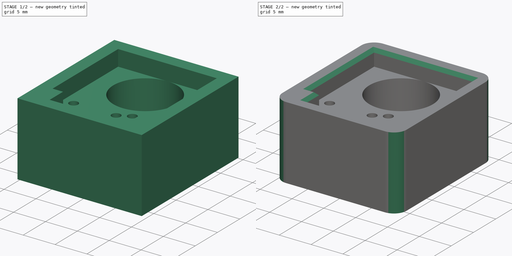
[diagram: build sequence overview — one tinted view per stage of 2, left to right]
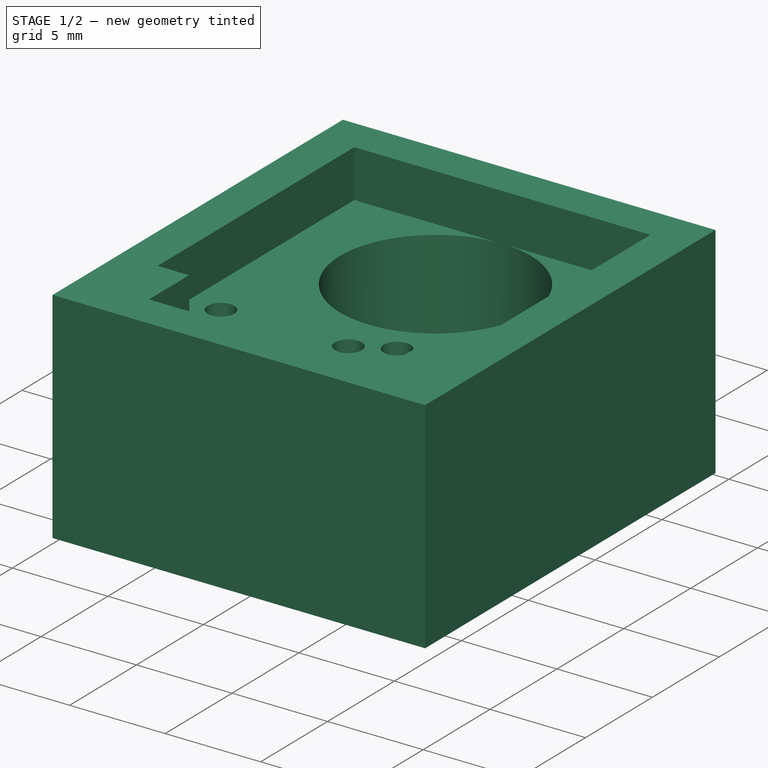
[diagram: stage 1 of 2 — iso view after this stage's code; geometry added in this stage tinted green]
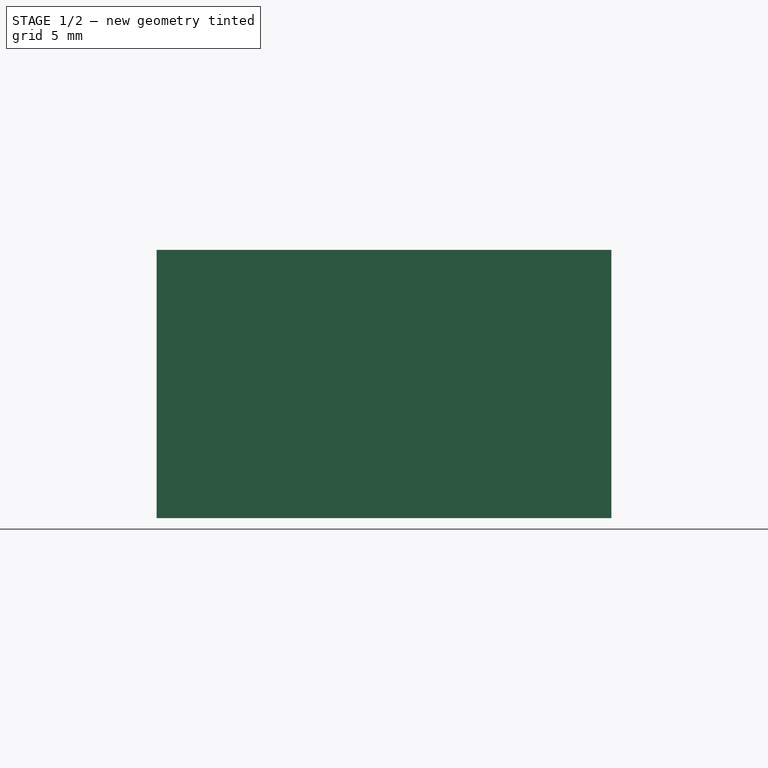
[diagram: stage 1 of 2 — front view after this stage's code; geometry added in this stage tinted green]
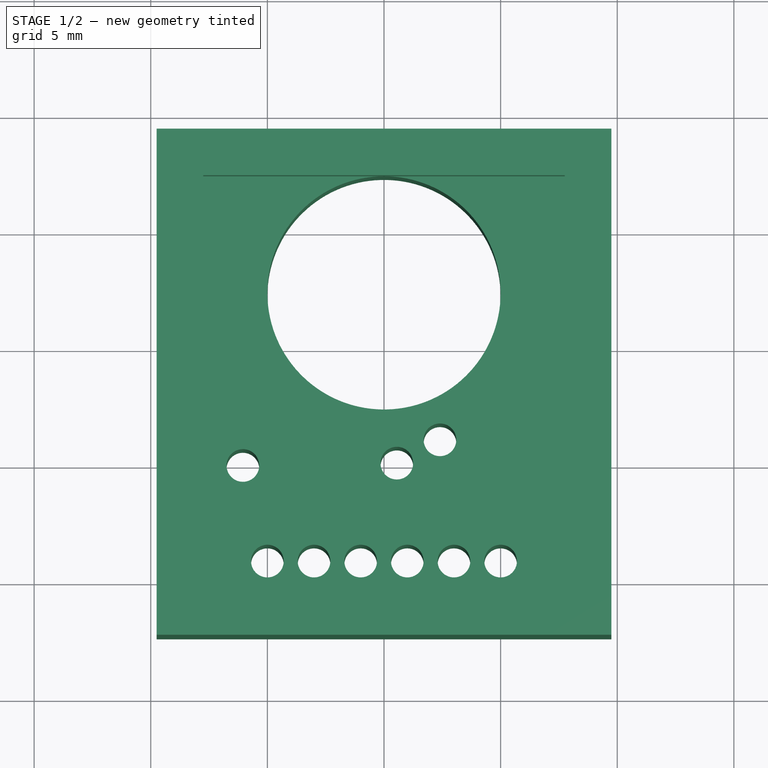
[diagram: stage 1 of 2 — top view after this stage's code; geometry added in this stage tinted green]
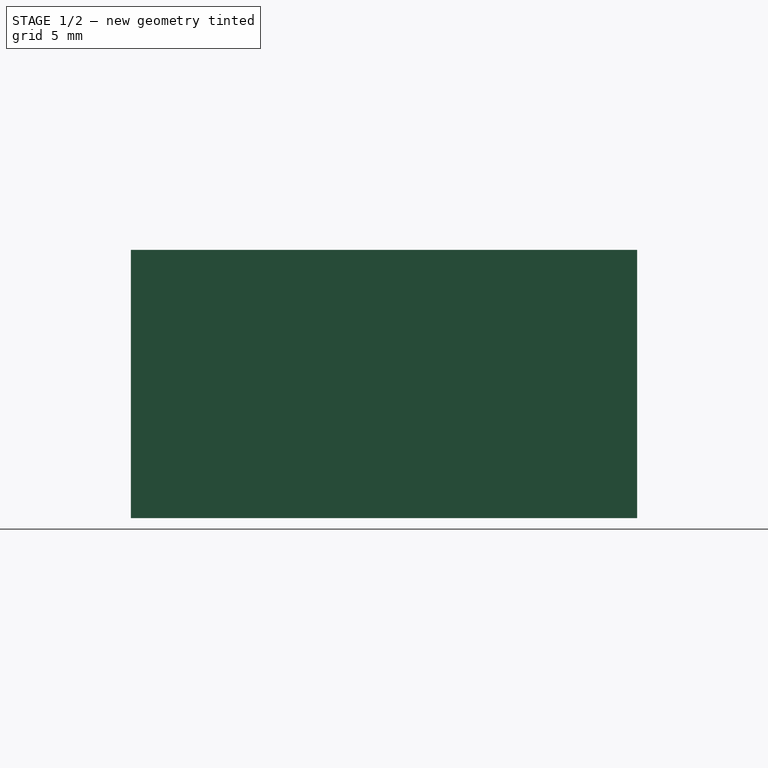
[diagram: stage 1 of 2 — right view after this stage's code; geometry added in this stage tinted green]
FCSTD DOCUMENT  (FreeCAD 0.20R24467 (Git))
Label: TYWE2S_rig
License: All rights reserved
LicenseURL: http://en.wikipedia.org/wiki/All_rights_reserved
objects: Sketcher::SketchObject×3, PartDesign::Pad×2, PartDesign::Fillet×1, PartDesign::Chamfer×1, PartDesign::Body×1
note: 12 computed .brp shape members not serialized (recipe doc carries the construction recipe); baked Part::Feature solids carry a one-line shape summary decoded from their .brp

FEATURE [Sketcher::SketchObject] Sketch  label="Template"
  FullyConstrained = true
  MapMode = 5
  Support = -> [XY_Plane]
  sketch-geometry (32):
    g0: LineSegment StartX=-7.75 StartY=7.35 StartZ=0 EndX=7.75 EndY=7.35 EndZ=0
    g1: LineSegment StartX=7.75 StartY=7.35 StartZ=0 EndX=7.75 EndY=-7.35 EndZ=0
    g2: LineSegment StartX=7.75 StartY=-7.35 StartZ=0 EndX=6.1 EndY=-7.35 EndZ=0
    g3: LineSegment StartX=-7.75 StartY=-7.35 StartZ=0 EndX=-7.75 EndY=7.35 EndZ=0
    g4: LineSegment StartX=-6.1 StartY=-7.35 StartZ=0 EndX=-6.1 EndY=-10.35 EndZ=0
    g5: LineSegment StartX=-6.1 StartY=-10.35 StartZ=0 EndX=6.1 EndY=-10.35 EndZ=0
    g6: LineSegment StartX=6.1 StartY=-10.35 StartZ=0 EndX=6.1 EndY=-7.35 EndZ=0
    g7: LineSegment StartX=-6.1 StartY=-7.35 StartZ=0 EndX=-7.75 EndY=-7.35 EndZ=0
    g8: GeomPoint X=0 Y=0 Z=0
    g9: LineSegment StartX=-9.75 StartY=9.35 StartZ=0 EndX=9.75 EndY=9.35 EndZ=0
    g10: LineSegment StartX=9.75 StartY=9.35 StartZ=0 EndX=9.75 EndY=-12.35 EndZ=0
    g11: LineSegment StartX=9.75 StartY=-12.35 StartZ=0 EndX=-9.75 EndY=-12.35 EndZ=0
    g12: LineSegment StartX=-9.75 StartY=-12.35 StartZ=0 EndX=-9.75 EndY=9.35 EndZ=0
    g13: LineSegment StartX=7.75 StartY=7.35 StartZ=0 EndX=9.75 EndY=7.35 EndZ=0
    g14: LineSegment StartX=-7.75 StartY=7.35 StartZ=0 EndX=-7.75 EndY=9.35 EndZ=0
    g15: LineSegment StartX=-7.75 StartY=-7.35 StartZ=0 EndX=-9.75 EndY=-7.35 EndZ=0
    g16: LineSegment StartX=6.1 StartY=-10.35 StartZ=0 EndX=6.1 EndY=-12.35 EndZ=0
    g17: LineSegment StartX=7e-16 StartY=7.35 StartZ=0 EndX=7e-16 EndY=-10.35 EndZ=0
    g18: Circle CenterX=-5 CenterY=-9.15 CenterZ=0 NormalX=0 NormalY=0 NormalZ=1 AngleXU=0 Radius=0.7
    g19: Circle CenterX=-3 CenterY=-9.15 CenterZ=0 NormalX=0 NormalY=0 NormalZ=1 AngleXU=0 Radius=0.7
    g20: Circle CenterX=-1 CenterY=-9.15 CenterZ=0 NormalX=0 NormalY=0 NormalZ=1 AngleXU=0 Radius=0.7
    g21: Circle CenterX=1 CenterY=-9.15 CenterZ=0 NormalX=0 NormalY=0 NormalZ=1 AngleXU=0 Radius=0.7
    g22: Circle CenterX=3 CenterY=-9.15 CenterZ=0 NormalX=0 NormalY=0 NormalZ=1 AngleXU=0 Radius=0.7
    g23: Circle CenterX=5 CenterY=-9.15 CenterZ=0 NormalX=0 NormalY=0 NormalZ=1 AngleXU=0 Radius=0.7
    g24: LineSegment StartX=-5 StartY=-9.15 StartZ=0 EndX=-3 EndY=-9.15 EndZ=0
    g25: LineSegment StartX=-3 StartY=-9.15 StartZ=0 EndX=-1 EndY=-9.15 EndZ=0
    g26: LineSegment StartX=-1 StartY=-9.15 StartZ=0 EndX=1 EndY=-9.15 EndZ=0
    g27: LineSegment StartX=1 StartY=-9.15 StartZ=0 EndX=3 EndY=-9.15 EndZ=0
    g28: LineSegment StartX=3 StartY=-9.15 StartZ=0 EndX=5 EndY=-9.15 EndZ=0
    g29: Circle CenterX=2.4 CenterY=-3.95 CenterZ=0 NormalX=0 NormalY=0 NormalZ=1 AngleXU=0 Radius=0.7
    g30: Circle CenterX=0.55 CenterY=-4.95 CenterZ=0 NormalX=0 NormalY=0 NormalZ=1 AngleXU=0 Radius=0.7
    g31: Circle CenterX=-6.05 CenterY=-5.05 CenterZ=0 NormalX=0 NormalY=0 NormalZ=1 AngleXU=0 Radius=0.7
  constraints (87):
    c: Coincident(g0,g1)
    c: Coincident(g1,g2)
    c: Coincident(g7,g3)
    c: Coincident(g3,g0)
    c: Horizontal(g0)
    c: Horizontal(g2)
    c: Vertical(g1)
    c: Vertical(g3)
    c: Vertical(g4)
    c: Coincident(g4,g5)
    c: Horizontal(g5)
    c: Coincident(g5,g6)
    c: Vertical(g6)
    c: Coincident(g2,g6)
    c: Coincident(g7,g4)
    c: DistanceX(g5,g5) = 12.2
    c: Equal(g7,g2)
    c: DistanceX(g0,g0) = 15.5
    c: DistanceY(g3,g3) = 14.7
    c: Horizontal(g7)
    c: PointOnObject(g4,g2)
    c: Coincident(g9,g10)
    c: Coincident(g10,g11)
    c: Coincident(g11,g12)
    c: Coincident(g12,g9)
    c: Horizontal(g9)
    c: Horizontal(g11)
    c: Vertical(g10)
    c: Vertical(g12)
    c: Symmetric(g3,g0,g8)
    c: Coincident(g13,g0)
    c: PointOnObject(g13,g10)
    c: Horizontal(g13)
    c: Coincident(g14,g0)
    c: PointOnObject(g14,g9)
    c: Vertical(g14)
    c: Coincident(g15,g3)
    c: PointOnObject(g15,g12)
    c: Horizontal(g15)
    c: Coincident(g16,g5)
    c: PointOnObject(g16,g11)
    c: Vertical(g16)
    c: Equal(g16,g15)
    c: Equal(g15,g14)
    c: Equal(g14,g13)
    c: DistanceX(g0,g9) = 2
    c: Coincident(g-1,g8)  '__ANCHOR__'
    c: DistanceY(g4,g3) = 3
    c: PointOnObject(g17,g0)
    c: PointOnObject(g17,g5)
    c: Symmetric(g4,g5,g17)
    c: Coincident(g24,g18)
    c: Coincident(g24,g19)
    c: Horizontal(g24)
    c: Coincident(g25,g19)
    c: Coincident(g25,g20)
    c: Horizontal(g25)
    c: Coincident(g26,g20)
    c: Coincident(g26,g21)
    c: Coincident(g27,g21)
    c: Coincident(g27,g22)
    c: Horizontal(g27)
    c: Coincident(g28,g22)
    c: Coincident(g28,g23)
    c: Horizontal(g28)
    c: Equal(g18,g19)
    c: Equal(g19,g20)
    c: Equal(g20,g21)
    c: Equal(g21,g22)
    c: Equal(g22,g23)
    c: Equal(g24,g25)
    c: Equal(g25,g26)
    c: Equal(g26,g27)
    c: Equal(g27,g28)
    c: DistanceX(g26,g26) = 2
    c: Symmetric(g20,g21,g17)
    c: Radius(g18) = 0.7
    c: DistanceY(g18,g4) = 1.8
    c: Equal(g23,g29)
    c: Equal(g29,g30)
    c: DistanceY(g2,g29) = 3.4
    c: DistanceY(g2,g30) = 2.4
    c: DistanceX(g29,g22) = 0.6
    c: DistanceX(g30,g21) = 0.45
    c: Equal(g31,g30)
    c: DistanceX(g31,g30) = 6.6
    c: DistanceY(g4,g31) = 2.3
FEATURE [Sketcher::SketchObject] Sketch001
  ExternalGeometry = -> [Sketch]
  FullyConstrained = true
  MapMode = 5
  Support = -> [XY_Plane]
  sketch-geometry (14):
    g0: LineSegment StartX=-9.75 StartY=9.35 StartZ=0 EndX=9.75 EndY=9.35 EndZ=0
    g1: LineSegment StartX=9.75 StartY=9.35 StartZ=0 EndX=9.75 EndY=-12.35 EndZ=0
    g2: LineSegment StartX=9.75 StartY=-12.35 StartZ=0 EndX=-9.75 EndY=-12.35 EndZ=0
    g3: LineSegment StartX=-9.75 StartY=-12.35 StartZ=0 EndX=-9.75 EndY=9.35 EndZ=0
    g4: Circle CenterX=0 CenterY=2.35 CenterZ=0 NormalX=0 NormalY=0 NormalZ=1 AngleXU=0 Radius=5
    g5: Circle CenterX=-5 CenterY=-9.15 CenterZ=0 NormalX=0 NormalY=0 NormalZ=1 AngleXU=0 Radius=0.7
    g6: Circle CenterX=-3 CenterY=-9.15 CenterZ=0 NormalX=0 NormalY=0 NormalZ=1 AngleXU=0 Radius=0.7
    g7: Circle CenterX=-1 CenterY=-9.15 CenterZ=0 NormalX=0 NormalY=0 NormalZ=1 AngleXU=0 Radius=0.7
    g8: Circle CenterX=1 CenterY=-9.15 CenterZ=0 NormalX=0 NormalY=0 NormalZ=1 AngleXU=0 Radius=0.7
    g9: Circle CenterX=3 CenterY=-9.15 CenterZ=0 NormalX=0 NormalY=0 NormalZ=1 AngleXU=0 Radius=0.7
    g10: Circle CenterX=5 CenterY=-9.15 CenterZ=0 NormalX=0 NormalY=0 NormalZ=1 AngleXU=0 Radius=0.7
    g11: Circle CenterX=2.4 CenterY=-3.95 CenterZ=0 NormalX=0 NormalY=0 NormalZ=1 AngleXU=0 Radius=0.7
    g12: Circle CenterX=0.55 CenterY=-4.95 CenterZ=0 NormalX=0 NormalY=0 NormalZ=1 AngleXU=0 Radius=0.7
    g13: Circle CenterX=-6.05 CenterY=-5.05 CenterZ=0 NormalX=0 NormalY=0 NormalZ=1 AngleXU=0 Radius=0.7
  constraints (31):
    c: Coincident(g0,g1)
    c: Coincident(g1,g2)
    c: Coincident(g2,g3)
    c: Coincident(g3,g0)
    c: Horizontal(g0)
    c: Horizontal(g2)
    c: Vertical(g1)
    c: Vertical(g3)
    c: Coincident(g0,g-3)
    c: Coincident(g1,g-4)
    c: PointOnObject(g4,g-2)
    c: Tangent(g4,g-5)
    c: Radius(g4) = 5
    c: Coincident(g5,g-8)
    c: Coincident(g6,g-9)
    c: Coincident(g7,g-10)
    c: Coincident(g8,g-11)
    c: Coincident(g9,g-12)
    c: Coincident(g10,g-13)
    c: Coincident(g11,g-6)
    c: Coincident(g12,g-7)
    c: Equal(g-7,g12)
    c: Equal(g11,g-6)
    c: Equal(g10,g-13)
    c: Equal(g9,g-12)
    c: Equal(g8,g-11)
    c: Equal(g7,g-10)
    c: Equal(g6,g-9)
    c: Equal(g5,g-8)
    c: Coincident(g13,g-14)
    c: Equal(g13,g-14)
FEATURE [PartDesign::Pad] Pad
  Direction = (1,1,1)
  Length = 9
  Length2 = 100
  Profile = -> Sketch001
  Type = 0
FEATURE [Sketcher::SketchObject] Sketch002
  AttachmentOffset = pos=(0,0,9) rot=(0,0,1;0rad)
  ExternalGeometry = -> [Sketch]
  FullyConstrained = true
  MapMode = 5
  Placement = pos=(0,0,9) rot=(0,0,1;0rad)
  Support = -> [XY_Plane]
  expr: .AttachmentOffset.Base.z = Pad.Length
  sketch-geometry (12):
    g0: LineSegment StartX=-9.75 StartY=9.35 StartZ=0 EndX=9.75 EndY=9.35 EndZ=0
    g1: LineSegment StartX=9.75 StartY=9.35 StartZ=0 EndX=9.75 EndY=-12.35 EndZ=0
    g2: LineSegment StartX=9.75 StartY=-12.35 StartZ=0 EndX=-9.75 EndY=-12.35 EndZ=0
    g3: LineSegment StartX=-9.75 StartY=-12.35 StartZ=0 EndX=-9.75 EndY=9.35 EndZ=0
    g4: LineSegment StartX=7.75 StartY=7.35 StartZ=0 EndX=-7.75 EndY=7.35 EndZ=0
    g5: LineSegment StartX=-7.75 StartY=7.35 StartZ=0 EndX=-7.75 EndY=-7.35 EndZ=0
    g6: LineSegment StartX=-7.75 StartY=-7.35 StartZ=0 EndX=-6.1 EndY=-7.35 EndZ=0
    g7: LineSegment StartX=-6.1 StartY=-7.35 StartZ=0 EndX=-6.1 EndY=-10.35 EndZ=0
    g8: LineSegment StartX=-6.1 StartY=-10.35 StartZ=0 EndX=6.1 EndY=-10.35 EndZ=0
    g9: LineSegment StartX=6.1 StartY=-10.35 StartZ=0 EndX=6.1 EndY=-7.35 EndZ=0
    g10: LineSegment StartX=6.1 StartY=-7.35 StartZ=0 EndX=7.75 EndY=-7.35 EndZ=0
    g11: LineSegment StartX=7.75 StartY=-7.35 StartZ=0 EndX=7.75 EndY=7.35 EndZ=0
  constraints (26):
    c: Coincident(g0,g1)
    c: Coincident(g1,g2)
    c: Coincident(g2,g3)
    c: Coincident(g3,g0)
    c: Horizontal(g0)
    c: Horizontal(g2)
    c: Vertical(g1)
    c: Vertical(g3)
    c: Coincident(g0,g-4)
    c: Coincident(g1,g-3)
    c: Coincident(g-6,g4)
    c: Coincident(g4,g-5)
    c: Coincident(g4,g5)
    c: Coincident(g5,g-5)
    c: Coincident(g5,g6)
    c: Coincident(g6,g-7)
    c: Coincident(g6,g7)
    c: Coincident(g7,g-7)
    c: Coincident(g7,g8)
    c: Coincident(g8,g-8)
    c: Coincident(g8,g9)
    c: Coincident(g9,g-8)
    c: Coincident(g9,g10)
    c: Coincident(g10,g-6)
    c: Coincident(g10,g11)
    c: Coincident(g11,g4)
FEATURE [PartDesign::Pad] Pad001
  BaseFeature = -> Pad
  Direction = (1,1,1)
  Length = 2.5
  Length2 = 100
  Profile = -> Sketch002
  Refine = true
  Type = 0
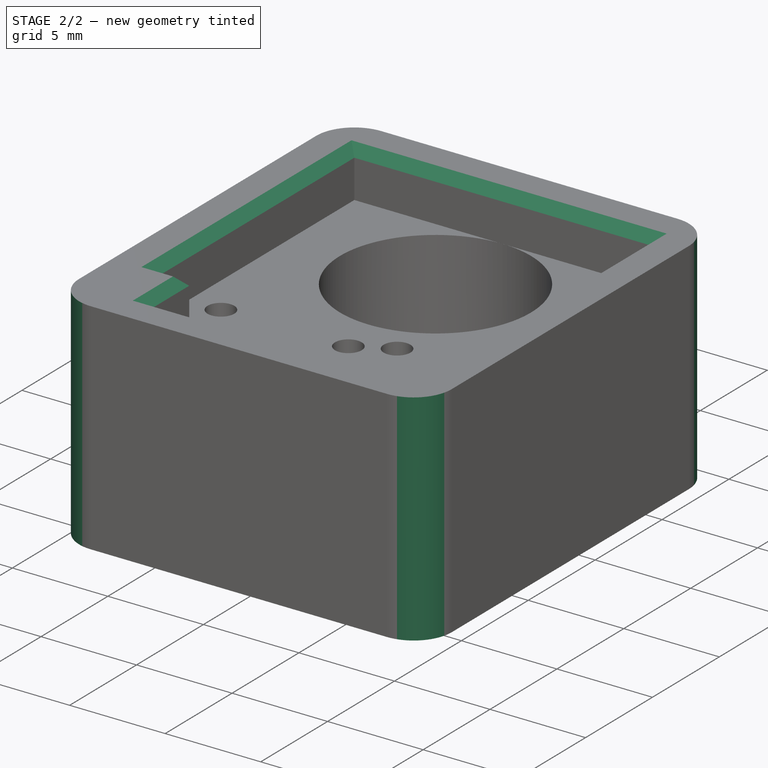
[diagram: stage 2 of 2 — iso view after this stage's code; geometry added in this stage tinted green]
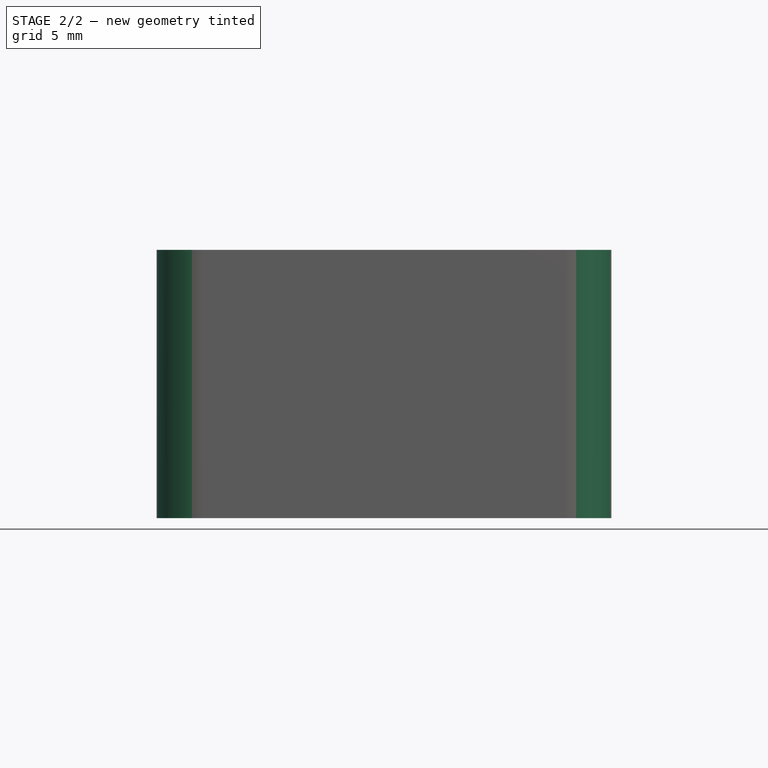
[diagram: stage 2 of 2 — front view after this stage's code; geometry added in this stage tinted green]
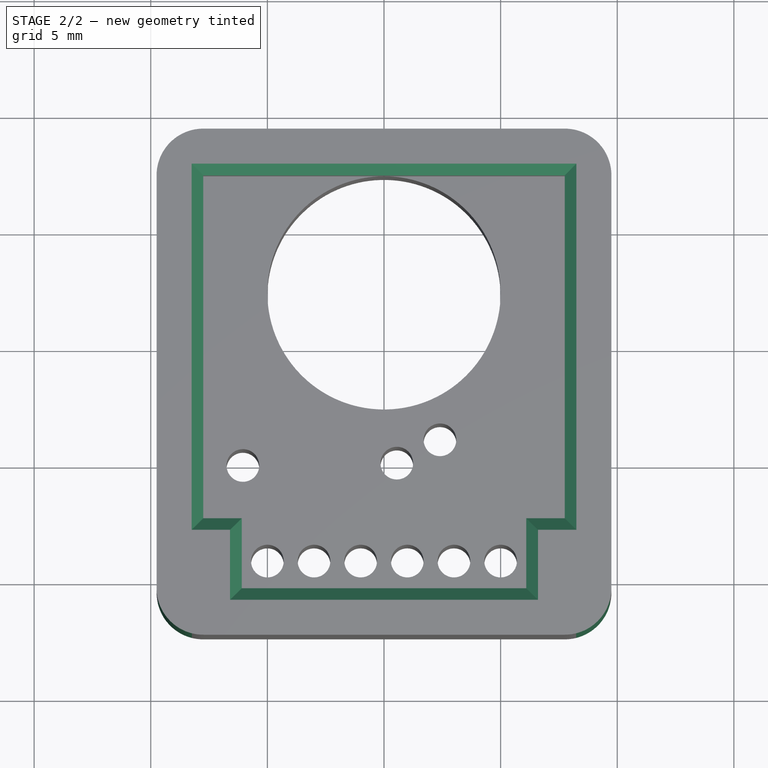
[diagram: stage 2 of 2 — top view after this stage's code; geometry added in this stage tinted green]
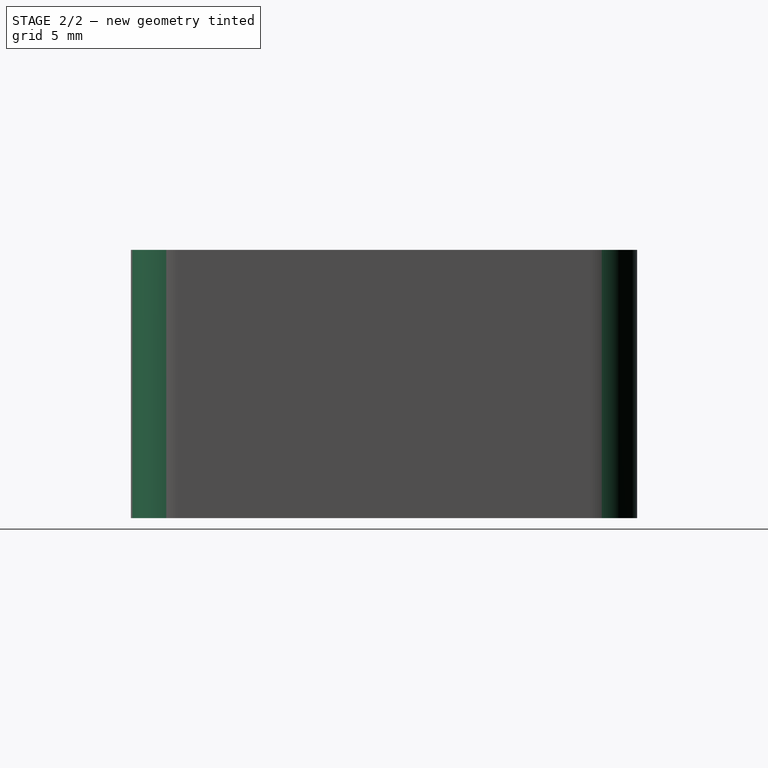
[diagram: stage 2 of 2 — right view after this stage's code; geometry added in this stage tinted green]
FEATURE [PartDesign::Fillet] Fillet
  Base = -> Pad001 [Edge68,Edge66,Edge65,Edge67]
  BaseFeature = -> Pad001
  Radius = 2
  SupportTransform = false
FEATURE [PartDesign::Chamfer] Chamfer
  Angle = 45
  Base = -> Fillet [Edge56,Edge57,Edge58,Edge59,Edge60,Edge61,Edge62,Edge63]
  BaseFeature = -> Fillet
  ChamferType = 0
  FlipDirection = false
  Size = 0.5
  Size2 = 1
  SupportTransform = false
FEATURE [PartDesign::Body] Body
  Group = -> [Sketch,Sketch001,Pad,Sketch002,Pad001,Fillet,Chamfer]
  Origin = -> Origin
  Tip = -> Chamfer
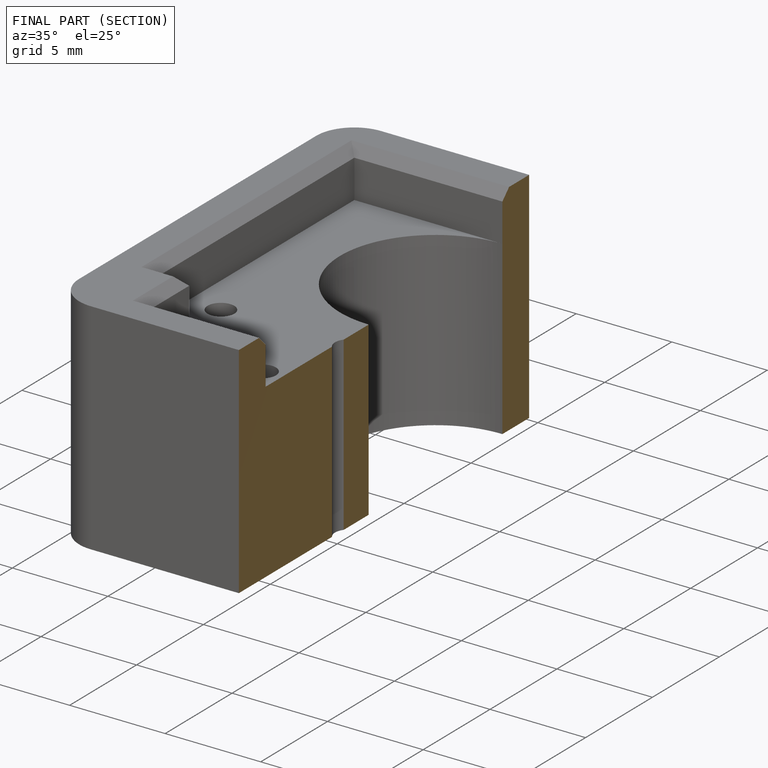
[diagram: finished part — half-section view (interior)]
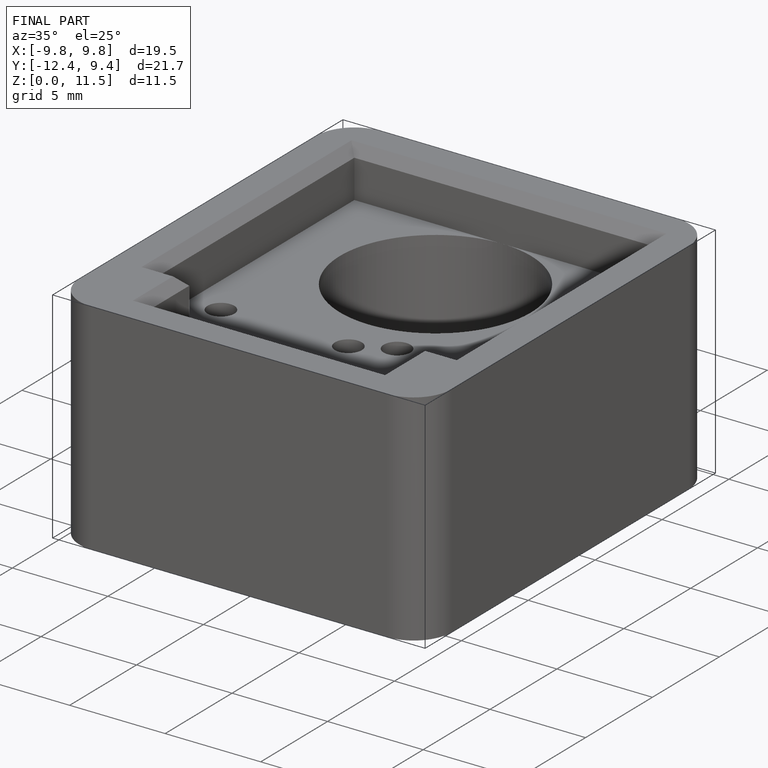
[diagram: finished part — iso view with bounding-box wireframe]
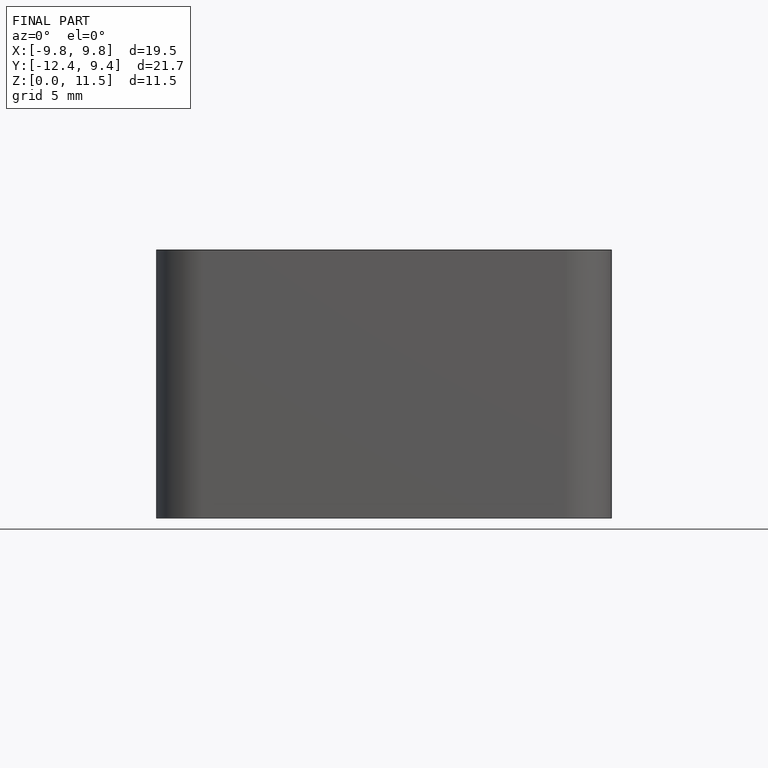
[diagram: finished part — front view with bounding-box wireframe]
